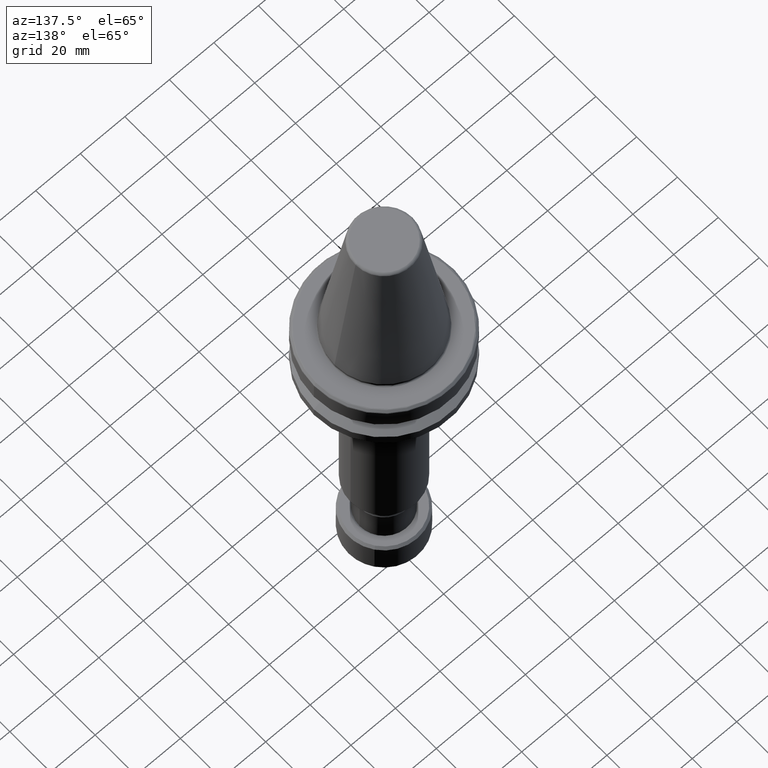
[diagram: clean part render]
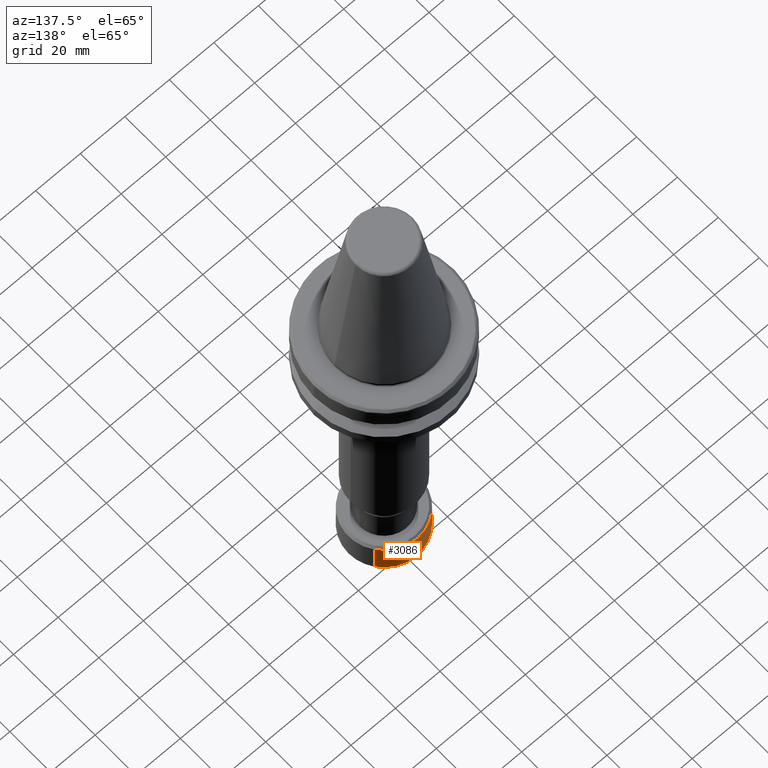
[diagram: same view with one face highlighted and labeled with its STEP entity id]
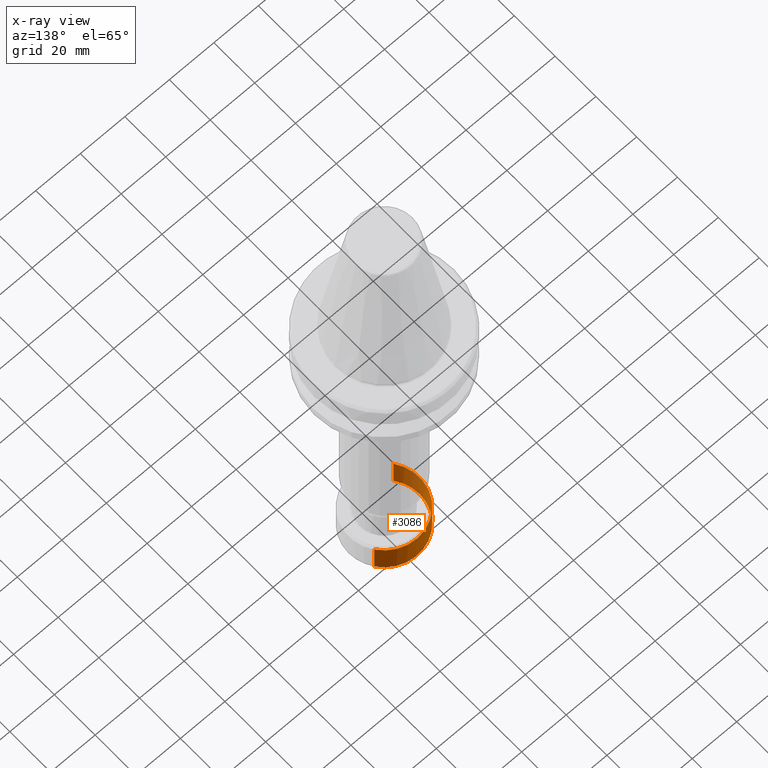
[diagram: x-ray of the same camera — body ghosted, the highlighted face saturated]
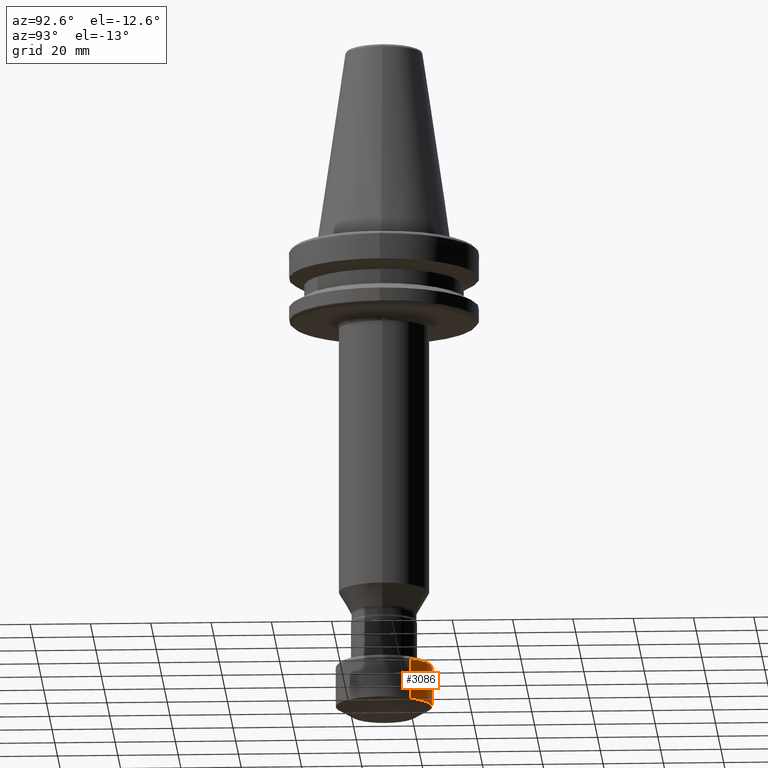
[diagram: same view with one face highlighted and labeled with its STEP entity id]
A machine part, auxiliary view. The second image highlights one B-rep face of the part: STEP entity #3086.
The next image is the same camera in x-ray: the body ghosted, the highlighted face saturated — about 32% of this face is hidden behind the body in this view.
A second angle (auxiliary view) of the same face is appended — the face is thin or edge-on in the first view.
In plain terms, the highlighted cylindrical surface (partial cylindrical patch) has radius 16 mm, axis along (0, 0, 1).
Its self-contained STEP definition (entity closure, byte-faithful):
#17 = DIRECTION ( 'NONE',  ( 2.189988689056325900E-017, 1.597119042039337700E-017, 1.000000000000000000 ) ) ;
#116 = LINE ( 'NONE', #1612, #127 ) ;
#127 = VECTOR ( 'NONE', #3604, 1000.000000000000000 ) ;
#184 = CARTESIAN_POINT ( 'NONE',  ( 106.4691752599609600, 120.6352504270817300, 2.371451957568493400 ) ) ;
#215 = CYLINDRICAL_SURFACE ( 'NONE', #3646, 16.00000000000000400 ) ;
#231 = DIRECTION ( 'NONE',  ( -0.5892329244749569000, 0.8079632174268143200, 0.0000000000000000000 ) ) ;
#236 = FACE_OUTER_BOUND ( 'NONE', #1860, .T. ) ;
#246 = CARTESIAN_POINT ( 'NONE',  ( 106.4691752599609600, 120.6352504270817300, 2.404663219054282500 ) ) ;
#370 = CIRCLE ( 'NONE', #1089, 16.00000000000001400 ) ;
#464 = EDGE_CURVE ( 'NONE', #718, #2798, #1161, .T. ) ;
#518 = DIRECTION ( 'NONE',  ( 0.0000000000000000000, 0.0000000000000000000, 1.000000000000000000 ) ) ;
#541 = AXIS2_PLACEMENT_3D ( 'NONE', #3074, #518, #231 ) ;
#556 = AXIS2_PLACEMENT_3D ( 'NONE', #1203, #3258, #1519 ) ;
#640 = CARTESIAN_POINT ( 'NONE',  ( 106.4691752599609600, 120.6352504270817300, 15.72923673805428100 ) ) ;
#670 = CIRCLE ( 'NONE', #541, 16.00000000000000400 ) ;
#718 = VERTEX_POINT ( 'NONE', #184 ) ;
#915 = DIRECTION ( 'NONE',  ( -0.0000000000000000000, -0.0000000000000000000, 1.000000000000000000 ) ) ;
#938 = EDGE_CURVE ( 'NONE', #3266, #1888, #1012, .T. ) ;
#1012 = CIRCLE ( 'NONE', #556, 16.00000000000001400 ) ;
#1089 = AXIS2_PLACEMENT_3D ( 'NONE', #2713, #915, #2999 ) ;
#1145 = CARTESIAN_POINT ( 'NONE',  ( 119.3965867387900100, 130.0629772186810600, 2.404663219054282000 ) ) ;
#1161 = LINE ( 'NONE', #246, #1176 ) ;
#1176 = VECTOR ( 'NONE', #2384, 1000.000000000000000 ) ;
#1203 = CARTESIAN_POINT ( 'NONE',  ( 119.3965867387900100, 130.0629772186810600, 2.371451957568493400 ) ) ;
#1319 = ORIENTED_EDGE ( 'NONE', *, *, #1868, .F. ) ;
#1450 = DIRECTION ( 'NONE',  ( -0.8079632174268143200, -0.5892329244749569000, 2.710505431213760500E-017 ) ) ;
#1519 = DIRECTION ( 'NONE',  ( 1.000000000000000000, 0.0000000000000000000, 0.0000000000000000000 ) ) ;
#1612 = CARTESIAN_POINT ( 'NONE',  ( 132.3239982176190200, 139.4907040102803500, 2.404663219054281600 ) ) ;
#1738 = ORIENTED_EDGE ( 'NONE', *, *, #3354, .F. ) ;
#1860 = EDGE_LOOP ( 'NONE', ( #1738, #3529, #3305, #1872, #1319 ) ) ;
#1868 = EDGE_CURVE ( 'NONE', #2360, #2798, #670, .T. ) ;
#1872 = ORIENTED_EDGE ( 'NONE', *, *, #464, .T. ) ;
#1888 = VERTEX_POINT ( 'NONE', #3573 ) ;
#2360 = VERTEX_POINT ( 'NONE', #3306 ) ;
#2384 = DIRECTION ( 'NONE',  ( 2.189988689056325900E-017, 1.597119042039337700E-017, 1.000000000000000000 ) ) ;
#2689 = EDGE_CURVE ( 'NONE', #1888, #718, #370, .T. ) ;
#2713 = CARTESIAN_POINT ( 'NONE',  ( 119.3965867387900100, 130.0629772186810600, 2.371451957568493400 ) ) ;
#2798 = VERTEX_POINT ( 'NONE', #640 ) ;
#2958 = CARTESIAN_POINT ( 'NONE',  ( 132.3239982176190200, 139.4907040102803500, 2.371451957568493400 ) ) ;
#2999 = DIRECTION ( 'NONE',  ( 1.000000000000000000, 0.0000000000000000000, 0.0000000000000000000 ) ) ;
#3074 = CARTESIAN_POINT ( 'NONE',  ( 119.3965867387900100, 130.0629772186810600, 15.72923673805428100 ) ) ;
#3086 = ADVANCED_FACE ( 'NONE', ( #236 ), #215, .T. ) ;
#3258 = DIRECTION ( 'NONE',  ( -0.0000000000000000000, -0.0000000000000000000, 1.000000000000000000 ) ) ;
#3266 = VERTEX_POINT ( 'NONE', #2958 ) ;
#3305 = ORIENTED_EDGE ( 'NONE', *, *, #2689, .T. ) ;
#3306 = CARTESIAN_POINT ( 'NONE',  ( 132.3239982176190200, 139.4907040102803500, 15.72923673805428100 ) ) ;
#3354 = EDGE_CURVE ( 'NONE', #3266, #2360, #116, .T. ) ;
#3529 = ORIENTED_EDGE ( 'NONE', *, *, #938, .T. ) ;
#3573 = CARTESIAN_POINT ( 'NONE',  ( 103.3965867387900100, 130.0629772186810600, 2.371451957568493400 ) ) ;
#3604 = DIRECTION ( 'NONE',  ( 2.189988689056325900E-017, 1.597119042039337700E-017, 1.000000000000000000 ) ) ;
#3646 = AXIS2_PLACEMENT_3D ( 'NONE', #1145, #17, #1450 ) ;